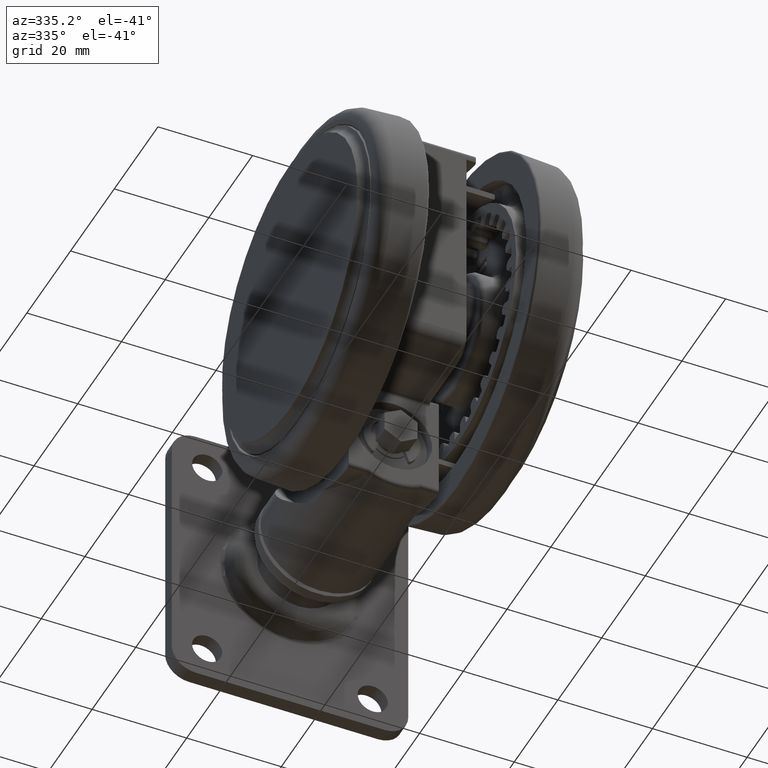
[diagram: clean part render]
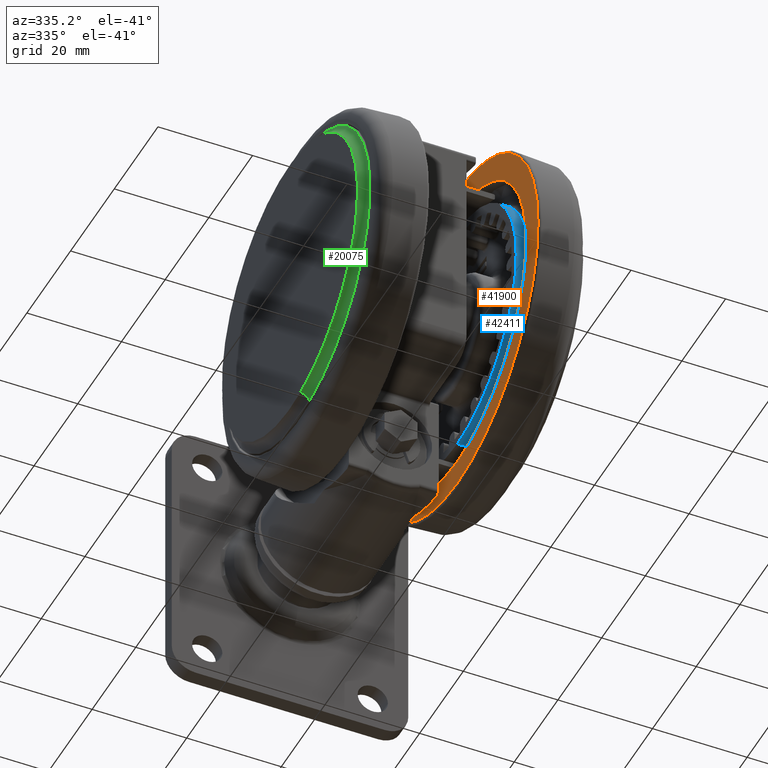
[diagram: same view with three faces highlighted in distinct colors, each labeled with its STEP entity id]
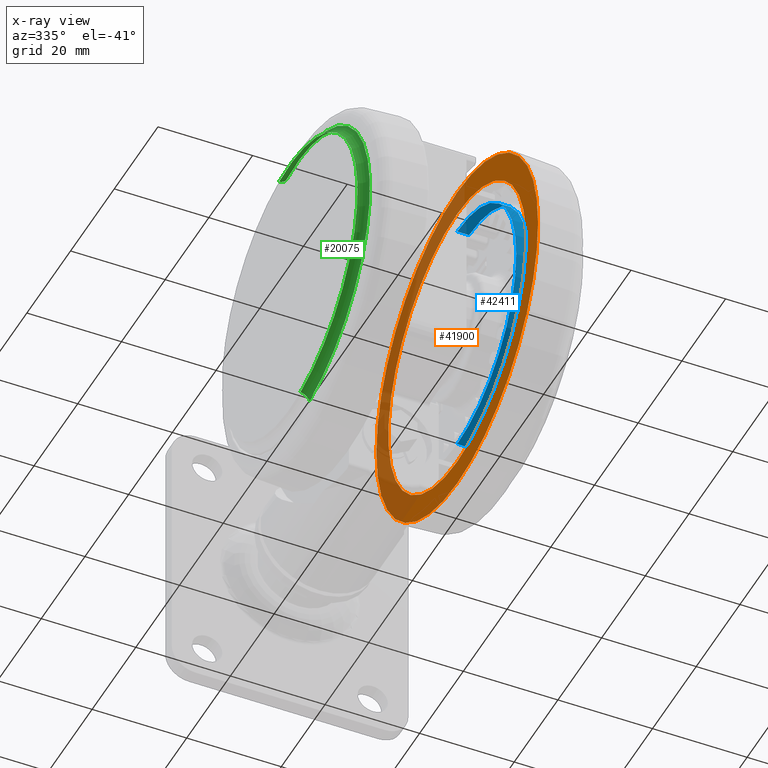
[diagram: x-ray of the same camera — body ghosted, the three highlighted faces saturated]
A machine part, auxiliary view with three faces highlighted in distinct colors.
The next image is the same camera in x-ray (body ghosted, the three faces saturated) — at least one of them is partly hidden behind the body in this view.
Their STEP definitions:

[orange] entity #41900 — the highlighted planar face has unit normal (-1, -0, 0).
#1243 = DIRECTION ( 'NONE',  ( 0.0000000000000000000, 0.0000000000000000000, 1.000000000000000000 ) ) ;
#3299 = VERTEX_POINT ( 'NONE', #35008 ) ;
#3446 = CARTESIAN_POINT ( 'NONE',  ( -1.211830873828888800E-013, 37.00068523262273600, -12.30000000000006600 ) ) ;
#3758 = EDGE_CURVE ( 'NONE', #3299, #39361, #11092, .T. ) ;
#7012 = CARTESIAN_POINT ( 'NONE',  ( 1.031674745632926200E-013, -31.49999999999996400, -12.30000000000003800 ) ) ;
#7585 = DIRECTION ( 'NONE',  ( -0.0000000000000000000, 0.0000000000000000000, -1.000000000000000000 ) ) ;
#8200 = CARTESIAN_POINT ( 'NONE',  ( -1.211830873828888800E-013, 37.00068523262273600, -12.30000000000005000 ) ) ;
#9572 = AXIS2_PLACEMENT_3D ( 'NONE', #34894, #7585, #39474 ) ;
#10432 = EDGE_LOOP ( 'NONE', ( #53773, #27445 ) ) ;
#11092 = CIRCLE ( 'NONE', #45965, 31.50000000000000000 ) ;
#11334 = CIRCLE ( 'NONE', #9572, 31.50000000000000000 ) ;
#12293 = ORIENTED_EDGE ( 'NONE', *, *, #17846, .F. ) ;
#13940 = DIRECTION ( 'NONE',  ( 0.0000000000000000000, 0.0000000000000000000, 1.000000000000000000 ) ) ;
#15545 = CARTESIAN_POINT ( 'NONE',  ( 1.174389034558025700E-013, -37.00068523262267200, -12.30000000000006600 ) ) ;
#16357 = FACE_BOUND ( 'NONE', #10432, .T. ) ;
#16462 = EDGE_LOOP ( 'NONE', ( #12293, #32675 ) ) ;
#17325 = DIRECTION ( 'NONE',  ( 0.0000000000000000000, 0.0000000000000000000, -1.000000000000000000 ) ) ;
#17595 = AXIS2_PLACEMENT_3D ( 'NONE', #41243, #13940, #45821 ) ;
#17846 = EDGE_CURVE ( 'NONE', #22086, #17944, #33140, .T. ) ;
#17944 = VERTEX_POINT ( 'NONE', #15545 ) ;
#22086 = VERTEX_POINT ( 'NONE', #3446 ) ;
#24569 = CIRCLE ( 'NONE', #17595, 37.00068523262270800 ) ;
#25898 = CARTESIAN_POINT ( 'NONE',  ( 0.0000000000000000000, 3.469446951953614200E-014, -12.30000000000003800 ) ) ;
#27445 = ORIENTED_EDGE ( 'NONE', *, *, #3758, .F. ) ;
#28488 = CARTESIAN_POINT ( 'NONE',  ( 0.0000000000000000000, 3.469446951953614200E-014, -12.30000000000006600 ) ) ;
#30516 = DIRECTION ( 'NONE',  ( 3.275157922644210200E-015, -1.000000000000000000, 0.0000000000000000000 ) ) ;
#30907 = PLANE ( 'NONE',  #37920 ) ;
#32675 = ORIENTED_EDGE ( 'NONE', *, *, #33956, .F. ) ;
#33085 = DIRECTION ( 'NONE',  ( -3.275157922644209800E-015, 1.000000000000000000, 0.0000000000000000000 ) ) ;
#33140 = CIRCLE ( 'NONE', #41724, 37.00068523262270800 ) ;
#33956 = EDGE_CURVE ( 'NONE', #17944, #22086, #24569, .T. ) ;
#34894 = CARTESIAN_POINT ( 'NONE',  ( 0.0000000000000000000, 3.469446951953614200E-014, -12.30000000000003800 ) ) ;
#35008 = CARTESIAN_POINT ( 'NONE',  ( -1.070251119806067900E-013, 31.50000000000003600, -12.30000000000003800 ) ) ;
#37920 = AXIS2_PLACEMENT_3D ( 'NONE', #8200, #17325, #49222 ) ;
#39361 = VERTEX_POINT ( 'NONE', #7012 ) ;
#39474 = DIRECTION ( 'NONE',  ( 3.275157922644210200E-015, -1.000000000000000000, 0.0000000000000000000 ) ) ;
#40634 = FACE_OUTER_BOUND ( 'NONE', #16462, .T. ) ;
#41243 = CARTESIAN_POINT ( 'NONE',  ( 0.0000000000000000000, 3.469446951953614200E-014, -12.30000000000006600 ) ) ;
#41724 = AXIS2_PLACEMENT_3D ( 'NONE', #28488, #1243, #33085 ) ;
#41900 = ADVANCED_FACE ( 'NONE', ( #40634, #16357 ), #30907, .T. ) ;
#45821 = DIRECTION ( 'NONE',  ( -3.275157922644209800E-015, 1.000000000000000000, 0.0000000000000000000 ) ) ;
#45965 = AXIS2_PLACEMENT_3D ( 'NONE', #25898, #57807, #30516 ) ;
#49222 = DIRECTION ( 'NONE',  ( 3.275157922644210200E-015, -1.000000000000000000, 0.0000000000000000000 ) ) ;
#53773 = ORIENTED_EDGE ( 'NONE', *, *, #55003, .F. ) ;
#55003 = EDGE_CURVE ( 'NONE', #39361, #3299, #11334, .T. ) ;
#57807 = DIRECTION ( 'NONE',  ( -0.0000000000000000000, 0.0000000000000000000, -1.000000000000000000 ) ) ;

[blue] entity #42411 — the highlighted cylindrical surface (partial cylindrical patch) has radius 27 mm, axis along (-1, 0, -0).
#1613 = ORIENTED_EDGE ( 'NONE', *, *, #19165, .T. ) ;
#3302 = CIRCLE ( 'NONE', #36340, 27.00000000000000000 ) ;
#4029 = DIRECTION ( 'NONE',  ( 3.275157922644210200E-015, -1.000000000000000000, 0.0000000000000000000 ) ) ;
#4177 = VERTEX_POINT ( 'NONE', #15152 ) ;
#4555 = DIRECTION ( 'NONE',  ( -0.0000000000000000000, 0.0000000000000000000, -1.000000000000000000 ) ) ;
#5628 = CYLINDRICAL_SURFACE ( 'NONE', #53903, 27.00000000000000000 ) ;
#8385 = LINE ( 'NONE', #38550, #55376 ) ;
#8875 = LINE ( 'NONE', #31854, #55861 ) ;
#11247 = DIRECTION ( 'NONE',  ( -0.0000000000000000000, 0.0000000000000000000, -1.000000000000000000 ) ) ;
#12308 = ORIENTED_EDGE ( 'NONE', *, *, #33381, .F. ) ;
#13497 = AXIS2_PLACEMENT_3D ( 'NONE', #58591, #31325, #4029 ) ;
#15152 = CARTESIAN_POINT ( 'NONE',  ( 8.842926391139368100E-014, -26.99999999999996400, -12.30000000000003800 ) ) ;
#16143 = EDGE_CURVE ( 'NONE', #43363, #4177, #8385, .T. ) ;
#16567 = CARTESIAN_POINT ( 'NONE',  ( 0.0000000000000000000, 3.469446951953614200E-014, -12.30000000000003800 ) ) ;
#16879 = DIRECTION ( 'NONE',  ( 3.275157922644210200E-015, -1.000000000000000000, 0.0000000000000000000 ) ) ;
#17027 = CARTESIAN_POINT ( 'NONE',  ( 8.842926391139368100E-014, -26.99999999999996400, -9.800000000000038000 ) ) ;
#19165 = EDGE_CURVE ( 'NONE', #19584, #43363, #48048, .T. ) ;
#19584 = VERTEX_POINT ( 'NONE', #36262 ) ;
#21142 = DIRECTION ( 'NONE',  ( 3.275157922644210200E-015, -1.000000000000000000, 0.0000000000000000000 ) ) ;
#31290 = FACE_OUTER_BOUND ( 'NONE', #57846, .T. ) ;
#31325 = DIRECTION ( 'NONE',  ( -0.0000000000000000000, 0.0000000000000000000, -1.000000000000000000 ) ) ;
#31854 = CARTESIAN_POINT ( 'NONE',  ( -9.173581026909153000E-014, 27.00000000000003600, -8.300000000000039800 ) ) ;
#33381 = EDGE_CURVE ( 'NONE', #36574, #4177, #3302, .T. ) ;
#35639 = EDGE_CURVE ( 'NONE', #19584, #36574, #8875, .T. ) ;
#36262 = CARTESIAN_POINT ( 'NONE',  ( -9.428402722101073300E-014, 27.00000000000003600, -9.800000000000038000 ) ) ;
#36340 = AXIS2_PLACEMENT_3D ( 'NONE', #16567, #48453, #21142 ) ;
#36574 = VERTEX_POINT ( 'NONE', #49597 ) ;
#38550 = CARTESIAN_POINT ( 'NONE',  ( 8.842926391139368100E-014, -26.99999999999996400, -8.300000000000039800 ) ) ;
#39436 = CARTESIAN_POINT ( 'NONE',  ( 0.0000000000000000000, 3.469446951953614200E-014, -8.300000000000039800 ) ) ;
#42411 = ADVANCED_FACE ( 'NONE', ( #31290 ), #5628, .T. ) ;
#43363 = VERTEX_POINT ( 'NONE', #17027 ) ;
#48048 = CIRCLE ( 'NONE', #13497, 27.00000000000000000 ) ;
#48453 = DIRECTION ( 'NONE',  ( -0.0000000000000000000, 0.0000000000000000000, -1.000000000000000000 ) ) ;
#48764 = DIRECTION ( 'NONE',  ( -0.0000000000000000000, 0.0000000000000000000, -1.000000000000000000 ) ) ;
#49597 = CARTESIAN_POINT ( 'NONE',  ( -9.173581026909153000E-014, 27.00000000000003600, -12.30000000000003800 ) ) ;
#53903 = AXIS2_PLACEMENT_3D ( 'NONE', #39436, #48764, #16879 ) ;
#55245 = ORIENTED_EDGE ( 'NONE', *, *, #35639, .F. ) ;
#55376 = VECTOR ( 'NONE', #11247, 1000.000000000000000 ) ;
#55861 = VECTOR ( 'NONE', #4555, 1000.000000000000000 ) ;
#57023 = ORIENTED_EDGE ( 'NONE', *, *, #16143, .T. ) ;
#57846 = EDGE_LOOP ( 'NONE', ( #55245, #1613, #57023, #12308 ) ) ;
#58591 = CARTESIAN_POINT ( 'NONE',  ( 0.0000000000000000000, 3.469446951953614200E-014, -9.800000000000038000 ) ) ;

[green] entity #20075 — the highlighted toroidal blend (fillet) surface has major radius 33.1663 mm and minor (blend) radius 2.2 mm.
#685 = CARTESIAN_POINT ( 'NONE',  ( 5.170457186449978900, 32.40603738390393600, -45.91190160355296300 ) ) ;
#2868 = EDGE_CURVE ( 'NONE', #30988, #22375, #28283, .T. ) ;
#3227 = ORIENTED_EDGE ( 'NONE', *, *, #7562, .T. ) ;
#4110 = CIRCLE ( 'NONE', #26542, 31.00000000000000700 ) ;
#5971 = ORIENTED_EDGE ( 'NONE', *, *, #53699, .T. ) ;
#7115 = ORIENTED_EDGE ( 'NONE', *, *, #2868, .F. ) ;
#7562 = EDGE_CURVE ( 'NONE', #38324, #50615, #18534, .T. ) ;
#8130 = CARTESIAN_POINT ( 'NONE',  ( 5.225655629728760400, 32.75199572993052800, -48.08382838746730700 ) ) ;
#9815 = CARTESIAN_POINT ( 'NONE',  ( 1.908195823574487800E-014, 0.0000000000000000000, -47.69999999999990300 ) ) ;
#12600 = ORIENTED_EDGE ( 'NONE', *, *, #46446, .F. ) ;
#13441 = DIRECTION ( 'NONE',  ( -0.1575593953139821900, -0.9875095123330672700, 0.0000000000000000000 ) ) ;
#14402 = DIRECTION ( 'NONE',  ( -0.1575593953139821900, -0.9875095123330671600, 0.0000000000000000000 ) ) ;
#16117 = CARTESIAN_POINT ( 'NONE',  ( -4.884341254733430800, -30.61279488232509700, -47.69999999999990300 ) ) ;
#17719 = CARTESIAN_POINT ( 'NONE',  ( 1.908195823574487800E-014, 0.0000000000000000000, -45.91190160355296300 ) ) ;
#18534 = CIRCLE ( 'NONE', #22454, 2.200000000000002000 ) ;
#20027 = DIRECTION ( 'NONE',  ( -0.9875095123330673900, 0.1575593953139821100, 0.0000000000000000000 ) ) ;
#20075 = ADVANCED_FACE ( 'NONE', ( #21559 ), #41584, .F. ) ;
#21559 = FACE_OUTER_BOUND ( 'NONE', #52832, .T. ) ;
#22300 = DIRECTION ( 'NONE',  ( -0.1575593953139822200, -0.9875095123330672700, 0.0000000000000000000 ) ) ;
#22375 = VERTEX_POINT ( 'NONE', #52412 ) ;
#22377 = CARTESIAN_POINT ( 'NONE',  ( 1.908195823574487800E-014, 0.0000000000000000000, -48.08382838746730700 ) ) ;
#22454 = AXIS2_PLACEMENT_3D ( 'NONE', #8130, #20027, #51934 ) ;
#24178 = AXIS2_PLACEMENT_3D ( 'NONE', #22377, #58844, #13441 ) ;
#26213 = DIRECTION ( 'NONE',  ( 0.9875095123330673900, -0.1575593953139822200, -0.0000000000000000000 ) ) ;
#26542 = AXIS2_PLACEMENT_3D ( 'NONE', #9815, #41709, #14402 ) ;
#28283 = CIRCLE ( 'NONE', #38295, 2.200000000000002000 ) ;
#30988 = VERTEX_POINT ( 'NONE', #16117 ) ;
#33671 = CARTESIAN_POINT ( 'NONE',  ( 4.884341254733465500, 30.61279488232509700, -47.69999999999990300 ) ) ;
#38295 = AXIS2_PLACEMENT_3D ( 'NONE', #53525, #26213, #58108 ) ;
#38324 = VERTEX_POINT ( 'NONE', #33671 ) ;
#41584 = TOROIDAL_SURFACE ( 'NONE', #24178, 33.16625847233755300, 2.200000000000000200 ) ;
#41709 = DIRECTION ( 'NONE',  ( -0.0000000000000000000, 0.0000000000000000000, -1.000000000000000000 ) ) ;
#42053 = CIRCLE ( 'NONE', #52204, 32.81592428140525200 ) ;
#46446 = EDGE_CURVE ( 'NONE', #38324, #30988, #4110, .T. ) ;
#49619 = DIRECTION ( 'NONE',  ( -0.0000000000000000000, 0.0000000000000000000, -1.000000000000000000 ) ) ;
#50615 = VERTEX_POINT ( 'NONE', #685 ) ;
#51934 = DIRECTION ( 'NONE',  ( -0.1575593953139820500, -0.9875095123330671600, 0.0000000000000000000 ) ) ;
#52204 = AXIS2_PLACEMENT_3D ( 'NONE', #17719, #49619, #22300 ) ;
#52412 = CARTESIAN_POINT ( 'NONE',  ( -5.170457186449944200, -32.40603738390393600, -45.91190160355296300 ) ) ;
#52832 = EDGE_LOOP ( 'NONE', ( #12600, #3227, #5971, #7115 ) ) ;
#53525 = CARTESIAN_POINT ( 'NONE',  ( -5.225655629728725800, -32.75199572993052800, -48.08382838746730700 ) ) ;
#53699 = EDGE_CURVE ( 'NONE', #50615, #22375, #42053, .T. ) ;
#58108 = DIRECTION ( 'NONE',  ( 0.1575593953139820500, 0.9875095123330671600, 0.0000000000000000000 ) ) ;
#58844 = DIRECTION ( 'NONE',  ( -0.0000000000000000000, 0.0000000000000000000, -1.000000000000000000 ) ) ;